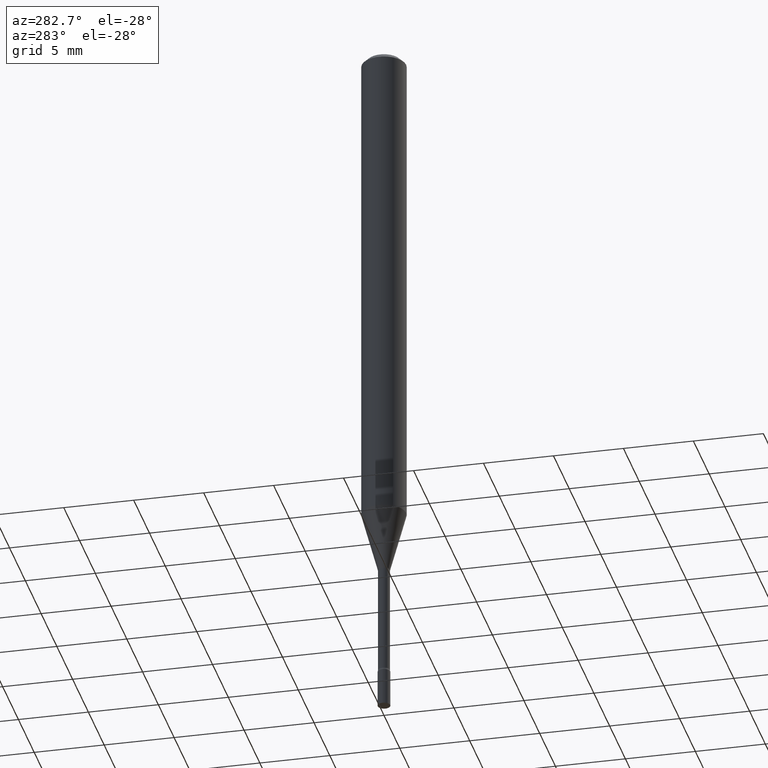
[diagram: clean part render]
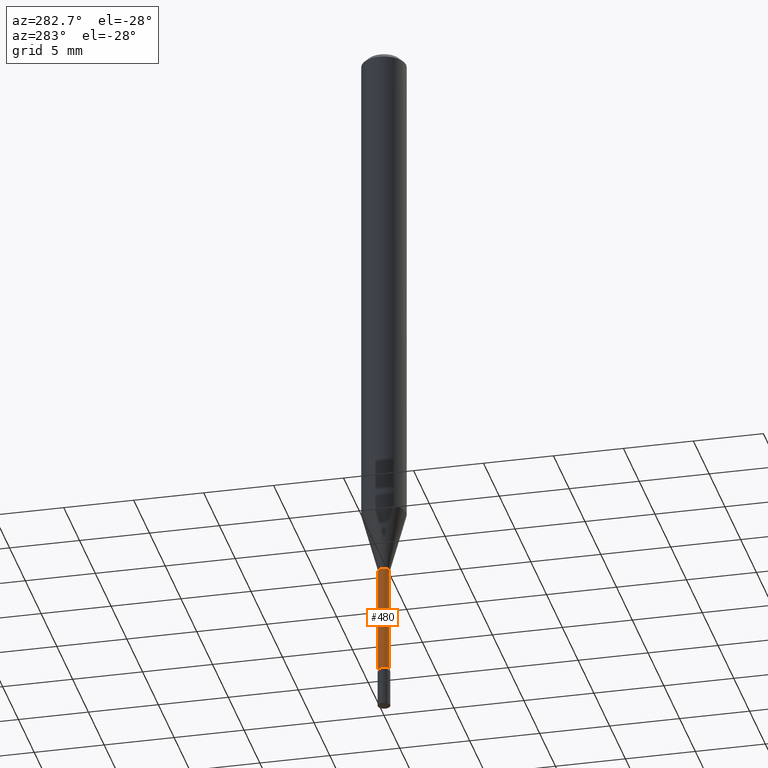
[diagram: same view with one face highlighted and labeled with its STEP entity id]
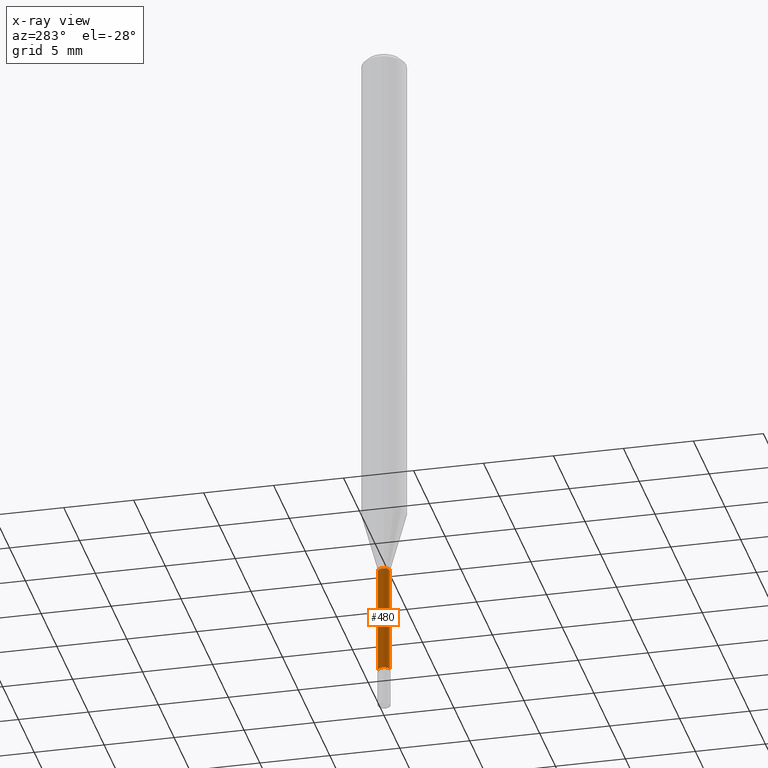
[diagram: x-ray of the same camera — body ghosted, the highlighted face saturated]
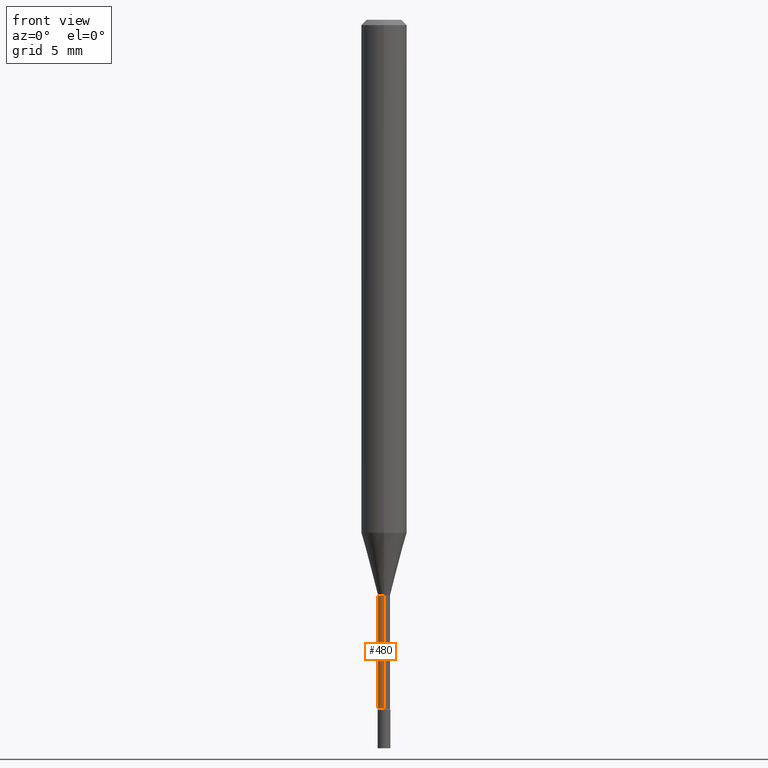
[diagram: same view with one face highlighted and labeled with its STEP entity id]
A machine part, auxiliary view. The second image highlights one B-rep face of the part: STEP entity #480.
The next image is the same camera in x-ray: the body ghosted, the highlighted face saturated — about 0% of this face is hidden behind the body in this view.
A second angle (front view) of the same face is appended — the face is thin or edge-on in the first view.
In plain terms, the highlighted cylindrical surface (edge-blend (fillet) strip) has radius 0.4178 mm, axis along (-0, 0, 1).
Its self-contained STEP definition (entity closure, byte-faithful):
#7 = VERTEX_POINT ( 'NONE', #460 ) ;
#15 = ORIENTED_EDGE ( 'NONE', *, *, #150, .T. ) ;
#16 = CARTESIAN_POINT ( 'NONE',  ( 0.000000000000000000, 0.000000000000000000, 0.000000000000000000 ) ) ;
#33 = CIRCLE ( 'NONE', #403, 0.01644999999999999934 ) ;
#50 = CIRCLE ( 'NONE', #518, 0.01645000000000002363 ) ;
#52 = CARTESIAN_POINT ( 'NONE',  ( -1.148697360479391503E-16, -0.01645000000000000975, 5.743416814429288012E-17 ) ) ;
#56 = DIRECTION ( 'NONE',  ( -2.445498515812265723E-29, 3.491438792966129637E-15, 1.000000000000000000 ) ) ;
#58 = ORIENTED_EDGE ( 'NONE', *, *, #474, .F. ) ;
#63 = VECTOR ( 'NONE', #409, 39.37007874015748143 ) ;
#94 = CYLINDRICAL_SURFACE ( 'NONE', #322, 0.01645000000000000975 ) ;
#101 = DIRECTION ( 'NONE',  ( -2.445498515812266003E-29, 3.491438792966129242E-15, 1.000000000000000000 ) ) ;
#102 = VERTEX_POINT ( 'NONE', #248 ) ;
#118 = ORIENTED_EDGE ( 'NONE', *, *, #443, .T. ) ;
#124 = VERTEX_POINT ( 'NONE', #458 ) ;
#137 = CARTESIAN_POINT ( 'NONE',  ( 4.620736693591810603E-29, -6.597026839220941096E-15, -1.889486607215153047 ) ) ;
#150 = EDGE_CURVE ( 'NONE', #377, #124, #288, .T. ) ;
#156 = ORIENTED_EDGE ( 'NONE', *, *, #325, .F. ) ;
#164 = FACE_OUTER_BOUND ( 'NONE', #165, .T. ) ;
#165 = EDGE_LOOP ( 'NONE', ( #156, #118, #15, #58 ) ) ;
#241 = CARTESIAN_POINT ( 'NONE',  ( 1.168842800325365499E-16, 0.01645000000000000975, -5.743416814429288012E-17 ) ) ;
#248 = CARTESIAN_POINT ( 'NONE',  ( 1.168842800325827475E-16, 0.01644999999999447599, -1.581974787463811039 ) ) ;
#249 = DIRECTION ( 'NONE',  ( -6.982962677686266711E-15, -1.000000000000000000, 3.491438792966130426E-15 ) ) ;
#284 = LINE ( 'NONE', #241, #63 ) ;
#288 = LINE ( 'NONE', #52, #513 ) ;
#321 = DIRECTION ( 'NONE',  ( -2.445498515812265723E-29, 3.491438792966129637E-15, 1.000000000000000000 ) ) ;
#322 = AXIS2_PLACEMENT_3D ( 'NONE', #16, #321, #249 ) ;
#325 = EDGE_CURVE ( 'NONE', #7, #102, #284, .T. ) ;
#363 = DIRECTION ( 'NONE',  ( -6.982962677686265133E-15, -1.000000000000000000, 0.000000000000000000 ) ) ;
#370 = DIRECTION ( 'NONE',  ( -2.445498515812265723E-29, 3.491438792966129637E-15, 1.000000000000000000 ) ) ;
#377 = VERTEX_POINT ( 'NONE', #508 ) ;
#402 = CARTESIAN_POINT ( 'NONE',  ( 3.868716994795174635E-29, -5.523368142445497990E-15, -1.581974787463811039 ) ) ;
#403 = AXIS2_PLACEMENT_3D ( 'NONE', #402, #56, #451 ) ;
#409 = DIRECTION ( 'NONE',  ( -2.445498515812266003E-29, 3.491438792966129242E-15, 1.000000000000000000 ) ) ;
#443 = EDGE_CURVE ( 'NONE', #7, #377, #50, .T. ) ;
#451 = DIRECTION ( 'NONE',  ( -6.982962677686266711E-15, -1.000000000000000000, 0.000000000000000000 ) ) ;
#458 = CARTESIAN_POINT ( 'NONE',  ( -1.148697360479003975E-16, -0.01645000000000552270, -1.581974787463811039 ) ) ;
#460 = CARTESIAN_POINT ( 'NONE',  ( 1.206146293953234297E-16, 0.01644999999999342821, -1.889486607215153047 ) ) ;
#474 = EDGE_CURVE ( 'NONE', #102, #124, #33, .T. ) ;
#480 = ADVANCED_FACE ( 'NONE', ( #164 ), #94, .T. ) ;
#508 = CARTESIAN_POINT ( 'NONE',  ( -1.148697360478930266E-16, -0.01645000000000661905, -1.889486607215153047 ) ) ;
#513 = VECTOR ( 'NONE', #101, 39.37007874015748143 ) ;
#518 = AXIS2_PLACEMENT_3D ( 'NONE', #137, #370, #363 ) ;